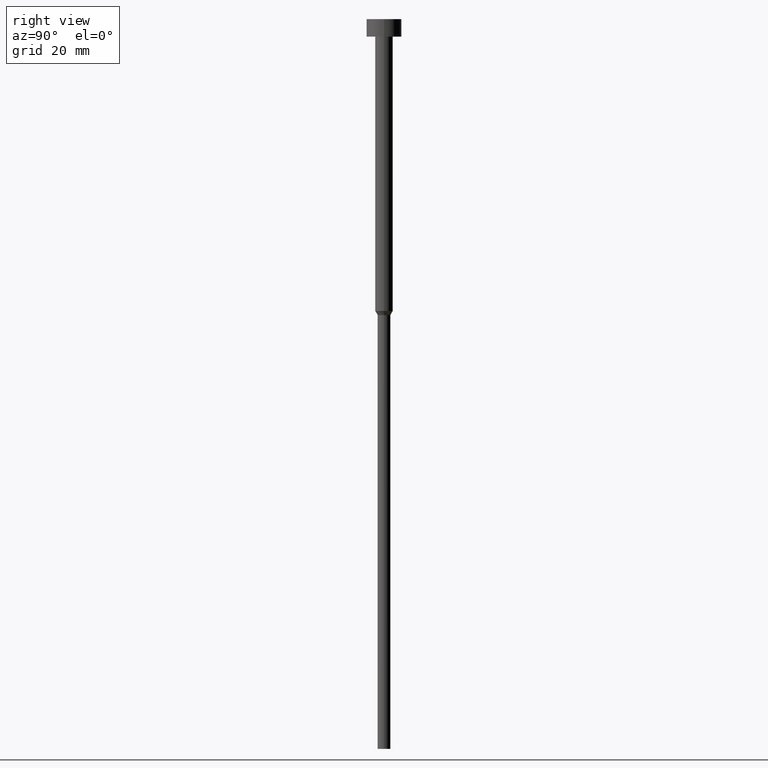
[diagram: clean part render]
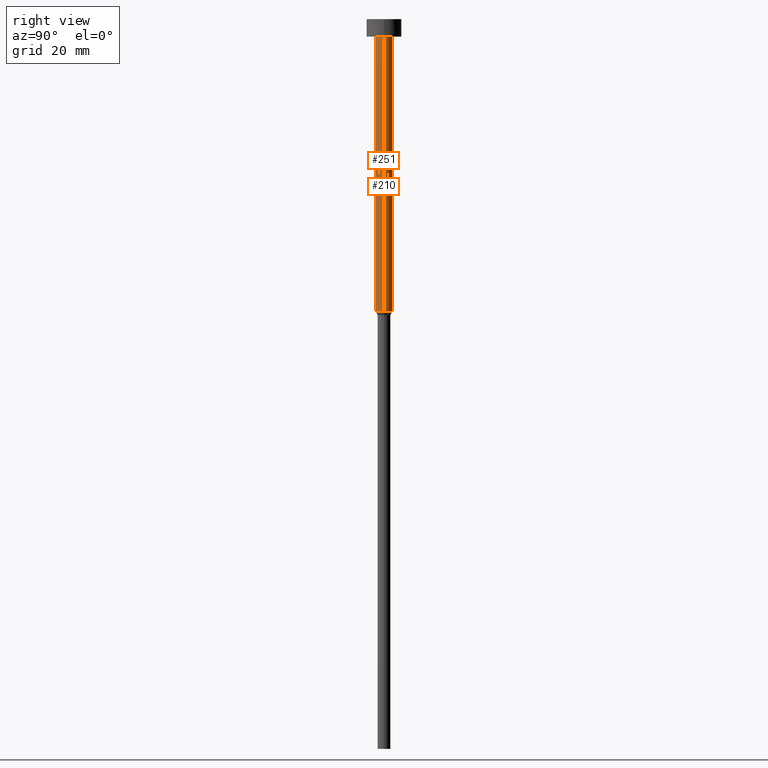
[diagram: same view with one multi-face feature highlighted, each face labeled with its STEP entity id]
A machine part, right view. The highlighted faces form ONE feature: a constant-radius fillet chain: 2 tangent blend faces with common blend radius 1.5 mm. The faces share edges in the B-rep.
Their STEP definitions:
[1] entity #210 (Cylinder):
#2 = CIRCLE ( 'NONE', #160, 1.500000000000000000 ) ;
#16 = CARTESIAN_POINT ( 'NONE',  ( 1.500000000000000000, 0.000000000000000000, -3.000000000000000888 ) ) ;
#24 = LINE ( 'NONE', #50, #313 ) ;
#50 = CARTESIAN_POINT ( 'NONE',  ( 1.500000000000000000, 0.000000000000000000, 0.000000000000000000 ) ) ;
#59 = VERTEX_POINT ( 'NONE', #185 ) ;
#62 = DIRECTION ( 'NONE',  ( -0.000000000000000000, -0.000000000000000000, 1.000000000000000000 ) ) ;
#65 = EDGE_CURVE ( 'NONE', #92, #344, #24, .T. ) ;
#79 = CARTESIAN_POINT ( 'NONE',  ( 1.500000000000000000, 0.000000000000000000, -50.00000000000000000 ) ) ;
#87 = ORIENTED_EDGE ( 'NONE', *, *, #65, .F. ) ;
#89 = DIRECTION ( 'NONE',  ( 1.000000000000000000, 0.000000000000000000, 0.000000000000000000 ) ) ;
#92 = VERTEX_POINT ( 'NONE', #79 ) ;
#93 = CARTESIAN_POINT ( 'NONE',  ( -1.500000000000000000, 1.836970198721029934E-16, -3.000000000000000888 ) ) ;
#102 = DIRECTION ( 'NONE',  ( -0.000000000000000000, -0.000000000000000000, 1.000000000000000000 ) ) ;
#129 = AXIS2_PLACEMENT_3D ( 'NONE', #351, #289, #345 ) ;
#130 = ORIENTED_EDGE ( 'NONE', *, *, #319, .T. ) ;
#141 = DIRECTION ( 'NONE',  ( -0.000000000000000000, -0.000000000000000000, 1.000000000000000000 ) ) ;
#153 = DIRECTION ( 'NONE',  ( -0.000000000000000000, -0.000000000000000000, 1.000000000000000000 ) ) ;
#160 = AXIS2_PLACEMENT_3D ( 'NONE', #233, #62, #270 ) ;
#171 = LINE ( 'NONE', #223, #187 ) ;
#177 = CYLINDRICAL_SURFACE ( 'NONE', #230, 1.500000000000000000 ) ;
#185 = CARTESIAN_POINT ( 'NONE',  ( -1.500000000000000000, 1.836970198721029934E-16, -50.00000000000000000 ) ) ;
#187 = VECTOR ( 'NONE', #102, 1000.000000000000000 ) ;
#201 = CARTESIAN_POINT ( 'NONE',  ( 0.000000000000000000, 0.000000000000000000, 0.000000000000000000 ) ) ;
#210 = ADVANCED_FACE ( 'NONE', ( #328 ), #177, .T. ) ;
#223 = CARTESIAN_POINT ( 'NONE',  ( -1.500000000000000000, 1.836970198721029934E-16, 0.000000000000000000 ) ) ;
#230 = AXIS2_PLACEMENT_3D ( 'NONE', #201, #141, #89 ) ;
#232 = ORIENTED_EDGE ( 'NONE', *, *, #258, .T. ) ;
#233 = CARTESIAN_POINT ( 'NONE',  ( 0.000000000000000000, 0.000000000000000000, -50.00000000000000000 ) ) ;
#258 = EDGE_CURVE ( 'NONE', #92, #59, #2, .T. ) ;
#270 = DIRECTION ( 'NONE',  ( 1.000000000000000000, 0.000000000000000000, 0.000000000000000000 ) ) ;
#272 = EDGE_CURVE ( 'NONE', #344, #273, #348, .T. ) ;
#273 = VERTEX_POINT ( 'NONE', #93 ) ;
#289 = DIRECTION ( 'NONE',  ( -0.000000000000000000, -0.000000000000000000, 1.000000000000000000 ) ) ;
#302 = EDGE_LOOP ( 'NONE', ( #232, #130, #316, #87 ) ) ;
#313 = VECTOR ( 'NONE', #153, 1000.000000000000000 ) ;
#316 = ORIENTED_EDGE ( 'NONE', *, *, #272, .F. ) ;
#319 = EDGE_CURVE ( 'NONE', #59, #273, #171, .T. ) ;
#328 = FACE_OUTER_BOUND ( 'NONE', #302, .T. ) ;
#344 = VERTEX_POINT ( 'NONE', #16 ) ;
#345 = DIRECTION ( 'NONE',  ( 1.000000000000000000, 0.000000000000000000, 0.000000000000000000 ) ) ;
#348 = CIRCLE ( 'NONE', #129, 1.500000000000000000 ) ;
#351 = CARTESIAN_POINT ( 'NONE',  ( 0.000000000000000000, 0.000000000000000000, -3.000000000000000888 ) ) ;
[2] entity #251 (Cylinder):
#16 = CARTESIAN_POINT ( 'NONE',  ( 1.500000000000000000, 0.000000000000000000, -3.000000000000000888 ) ) ;
#19 = EDGE_CURVE ( 'NONE', #59, #92, #77, .T. ) ;
#24 = LINE ( 'NONE', #50, #313 ) ;
#43 = DIRECTION ( 'NONE',  ( 1.000000000000000000, 0.000000000000000000, 0.000000000000000000 ) ) ;
#48 = ORIENTED_EDGE ( 'NONE', *, *, #319, .F. ) ;
#50 = CARTESIAN_POINT ( 'NONE',  ( 1.500000000000000000, 0.000000000000000000, 0.000000000000000000 ) ) ;
#59 = VERTEX_POINT ( 'NONE', #185 ) ;
#61 = EDGE_LOOP ( 'NONE', ( #48, #329, #212, #228 ) ) ;
#65 = EDGE_CURVE ( 'NONE', #92, #344, #24, .T. ) ;
#73 = EDGE_CURVE ( 'NONE', #273, #344, #296, .T. ) ;
#77 = CIRCLE ( 'NONE', #263, 1.500000000000000000 ) ;
#79 = CARTESIAN_POINT ( 'NONE',  ( 1.500000000000000000, 0.000000000000000000, -50.00000000000000000 ) ) ;
#92 = VERTEX_POINT ( 'NONE', #79 ) ;
#93 = CARTESIAN_POINT ( 'NONE',  ( -1.500000000000000000, 1.836970198721029934E-16, -3.000000000000000888 ) ) ;
#102 = DIRECTION ( 'NONE',  ( -0.000000000000000000, -0.000000000000000000, 1.000000000000000000 ) ) ;
#114 = FACE_OUTER_BOUND ( 'NONE', #61, .T. ) ;
#123 = CARTESIAN_POINT ( 'NONE',  ( 0.000000000000000000, 0.000000000000000000, 0.000000000000000000 ) ) ;
#133 = AXIS2_PLACEMENT_3D ( 'NONE', #123, #249, #330 ) ;
#140 = CARTESIAN_POINT ( 'NONE',  ( 0.000000000000000000, 0.000000000000000000, -50.00000000000000000 ) ) ;
#153 = DIRECTION ( 'NONE',  ( -0.000000000000000000, -0.000000000000000000, 1.000000000000000000 ) ) ;
#171 = LINE ( 'NONE', #223, #187 ) ;
#185 = CARTESIAN_POINT ( 'NONE',  ( -1.500000000000000000, 1.836970198721029934E-16, -50.00000000000000000 ) ) ;
#187 = VECTOR ( 'NONE', #102, 1000.000000000000000 ) ;
#212 = ORIENTED_EDGE ( 'NONE', *, *, #65, .T. ) ;
#223 = CARTESIAN_POINT ( 'NONE',  ( -1.500000000000000000, 1.836970198721029934E-16, 0.000000000000000000 ) ) ;
#228 = ORIENTED_EDGE ( 'NONE', *, *, #73, .F. ) ;
#238 = CYLINDRICAL_SURFACE ( 'NONE', #133, 1.500000000000000000 ) ;
#249 = DIRECTION ( 'NONE',  ( -0.000000000000000000, -0.000000000000000000, 1.000000000000000000 ) ) ;
#251 = ADVANCED_FACE ( 'NONE', ( #114 ), #238, .T. ) ;
#263 = AXIS2_PLACEMENT_3D ( 'NONE', #140, #269, #43 ) ;
#269 = DIRECTION ( 'NONE',  ( -0.000000000000000000, -0.000000000000000000, 1.000000000000000000 ) ) ;
#273 = VERTEX_POINT ( 'NONE', #93 ) ;
#277 = CARTESIAN_POINT ( 'NONE',  ( 0.000000000000000000, 0.000000000000000000, -3.000000000000000888 ) ) ;
#279 = AXIS2_PLACEMENT_3D ( 'NONE', #277, #333, #306 ) ;
#296 = CIRCLE ( 'NONE', #279, 1.500000000000000000 ) ;
#306 = DIRECTION ( 'NONE',  ( 1.000000000000000000, 0.000000000000000000, 0.000000000000000000 ) ) ;
#313 = VECTOR ( 'NONE', #153, 1000.000000000000000 ) ;
#319 = EDGE_CURVE ( 'NONE', #59, #273, #171, .T. ) ;
#329 = ORIENTED_EDGE ( 'NONE', *, *, #19, .T. ) ;
#330 = DIRECTION ( 'NONE',  ( 1.000000000000000000, 0.000000000000000000, 0.000000000000000000 ) ) ;
#333 = DIRECTION ( 'NONE',  ( -0.000000000000000000, -0.000000000000000000, 1.000000000000000000 ) ) ;
#344 = VERTEX_POINT ( 'NONE', #16 ) ;